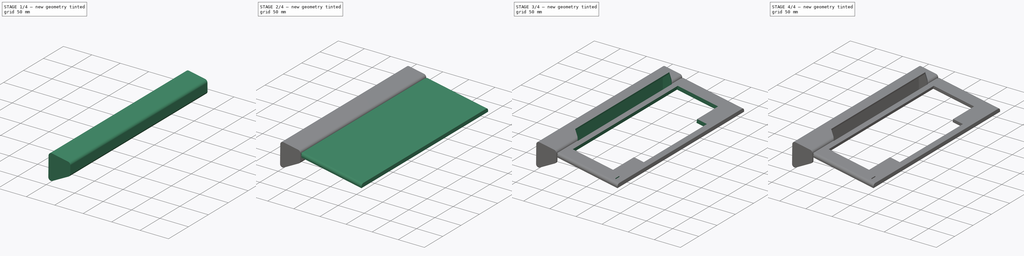
[diagram: build sequence overview — one tinted view per stage of 4, left to right]
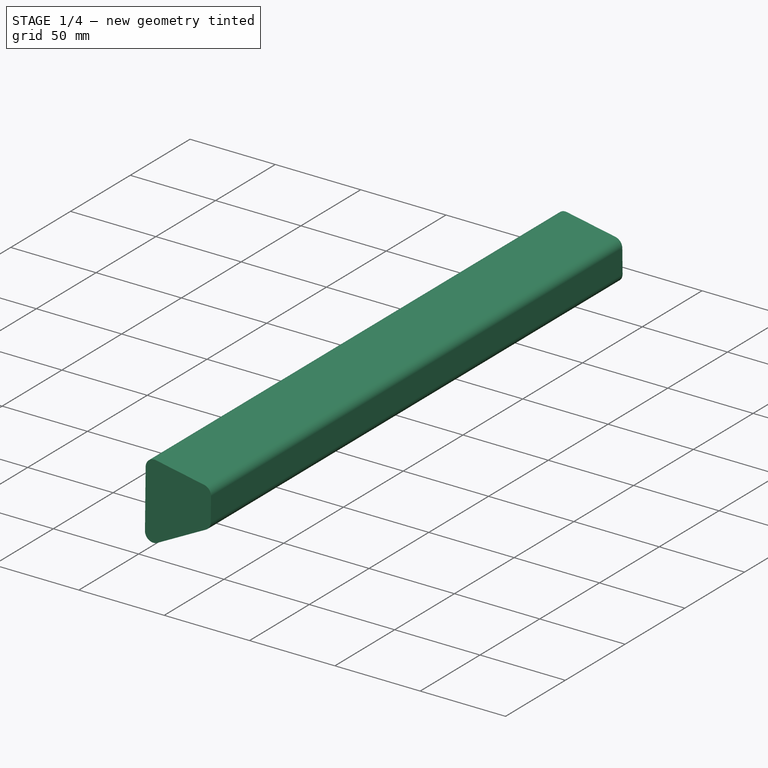
[diagram: stage 1 of 4 — iso view after this stage's code; geometry added in this stage tinted green]
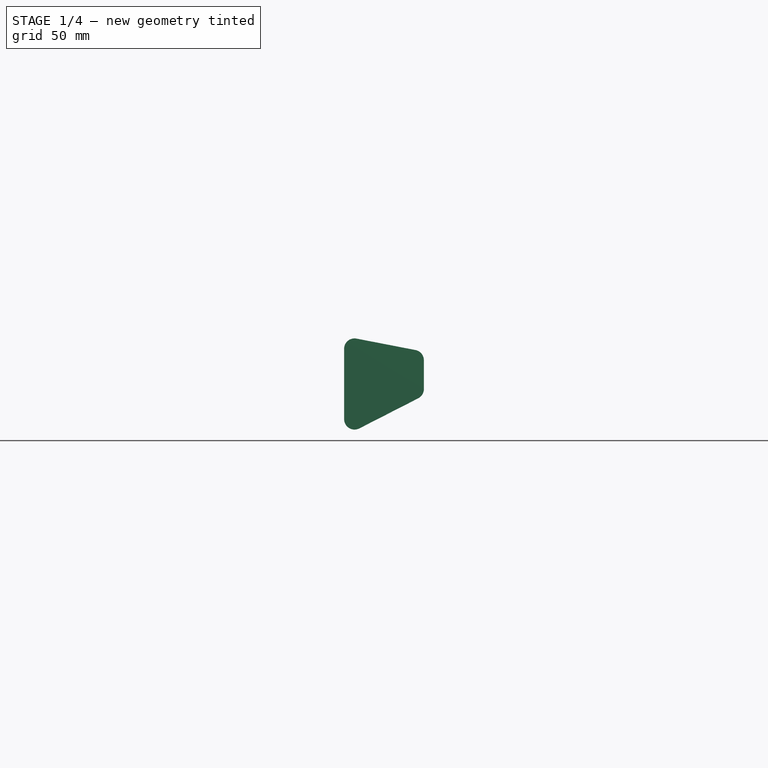
[diagram: stage 1 of 4 — front view after this stage's code; geometry added in this stage tinted green]
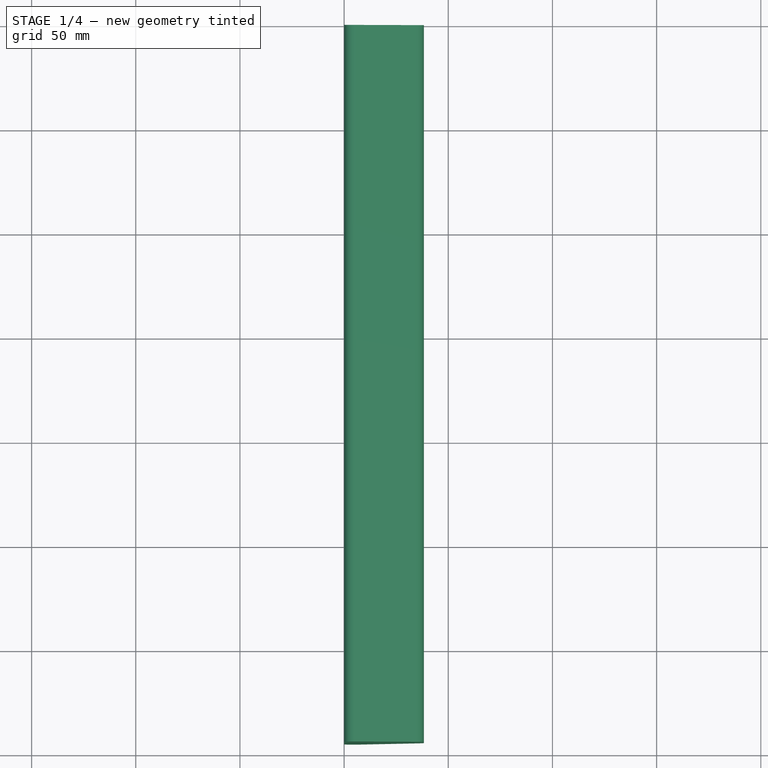
[diagram: stage 1 of 4 — top view after this stage's code; geometry added in this stage tinted green]
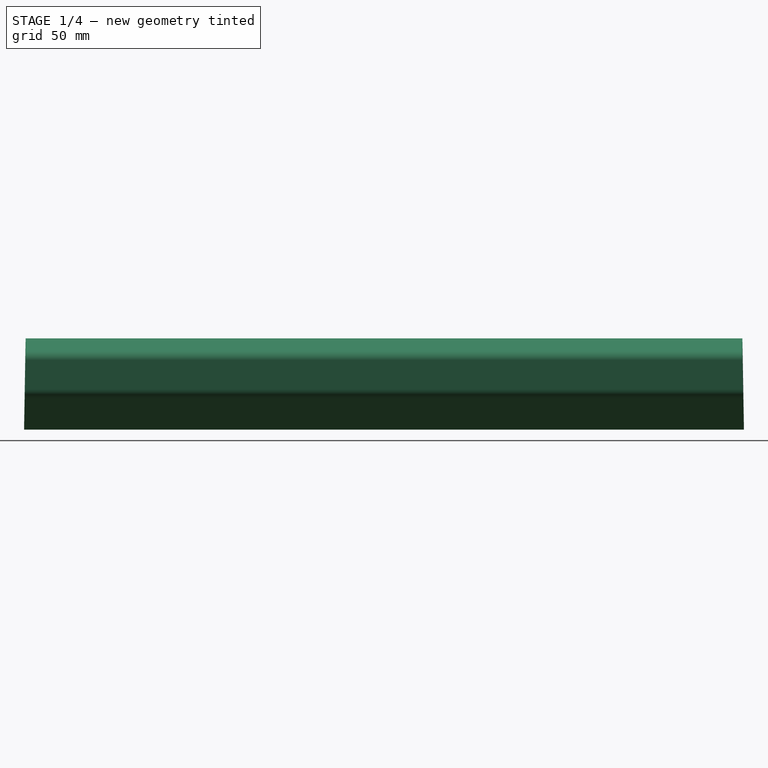
[diagram: stage 1 of 4 — right view after this stage's code; geometry added in this stage tinted green]
FCSTD DOCUMENT  (FreeCAD 0.21R33771 (Git))
Label: DecentXE-Enclosure
License: All rights reserved
LicenseURL: http://en.wikipedia.org/wiki/All_rights_reserved
objects: Sketcher::SketchObject×7, PartDesign::Pocket×5, PartDesign::Plane×4, PartDesign::Pad×3, PartDesign::Line×2, PartDesign::Point×2, PartDesign::Draft×1, Part::Offset2D×1, PartDesign::SubShapeBinder×1, PartDesign::Body×1, App::Part×1
note: 36 computed .brp shape members not serialized (recipe doc carries the construction recipe); baked Part::Feature solids carry a one-line shape summary decoded from their .brp

FEATURE [Sketcher::SketchObject] Sketch  label="ConsoleKeySectionSketch"
  FullyConstrained = true
  MapMode = 5
  Placement = pos=(0,0,0) rot=(1,0,0;1.5708rad)
  Support = -> [XZ_Plane001]
  sketch-geometry (12):
    g0: LineSegment StartX=5.95204 StartY=54.1257 StartZ=0 EndX=34.2385 EndY=48.6393 EndZ=0
    g1: ArcOfCircle CenterX=33.2865 CenterY=43.7308 CenterZ=0 NormalX=0 NormalY=0 NormalZ=1 AngleXU=0 Radius=5 StartAngle=5e-16 EndAngle=1.37922
    g2: LineSegment StartX=38.2865 StartY=43.7308 StartZ=0 EndX=38.2865 EndY=29.9135 EndZ=0
    g3: ArcOfCircle CenterX=33.2865 CenterY=29.9135 CenterZ=0 NormalX=0 NormalY=0 NormalZ=1 AngleXU=0 Radius=5 StartAngle=5.185 EndAngle=6.28319
    g4: LineSegment StartX=35.5625 StartY=25.4615 StartZ=0 EndX=7.27606 EndY=11 EndZ=0
    g5: ArcOfCircle CenterX=5 CenterY=15.4519 CenterZ=0 NormalX=0 NormalY=0 NormalZ=1 AngleXU=0 Radius=5 StartAngle=3.14159 EndAngle=5.185
    g6: LineSegment StartX=0 StartY=15.4519 StartZ=0 EndX=0 EndY=49.2171 EndZ=0
    g7: ArcOfCircle CenterX=5 CenterY=49.2171 CenterZ=0 NormalX=0 NormalY=0 NormalZ=1 AngleXU=0 Radius=5 StartAngle=1.37922 EndAngle=3.14159
    g8: GeomPoint X=0 Y=55.2801 Z=0
    g9: GeomPoint X=38.2865 Y=47.8542 Z=0
    g10: GeomPoint X=0 Y=7.2801 Z=0
    g11: GeomPoint X=38.2865 Y=26.8542 Z=0
  constraints (28):
    c: Tangent(g0,g1) = 1.5708
    c: Tangent(g2,g3) = 1.5708
    c: Tangent(g4,g5) = 1.5708
    c: Tangent(g6,g7) = 1.5708
    c: Tangent(g7,g0) = 1.5708
    c: Tangent(g5,g6) = 1.5708
    c: Tangent(g3,g4) = 1.5708
    c: Tangent(g1,g2) = 1.5708
    c: PointOnObject(g8,g0)
    c: PointOnObject(g8,g6)
    c: PointOnObject(g9,g0)
    c: PointOnObject(g9,g2)
    c: PointOnObject(g11,g2)
    c: PointOnObject(g11,g4)
    c: PointOnObject(g10,g4)
    c: PointOnObject(g10,g6)
    c: Distance(g8,g9) = 39
    c: Radius(g1) = 5
    c: Equal(g1,g7)
    c: Equal(g1,g3)
    c: Equal(g1,g5)
    c: Distance(g9,g11) = 21
    c: Distance(g8,g10) = 48
    c: Distance(g10,g11) = 43
    c: Vertical(g6)
    c: Vertical(g2)
    c: DistanceY(g-1,g4) = 11
    c: DistanceX(g-1,g5) = 0
FEATURE [PartDesign::Pad] Pad  label="ConsoleKeySection"
  Direction = (0,-1,-2e-16)
  Length = 344
  Length2 = 10
  Placement = pos=(0,0,0) rot=(1,0,0;1.5708rad)
  Profile = -> Sketch
  ReferenceAxis = -> Sketch [N_Axis]
  Type = 0
FEATURE [PartDesign::Draft] Draft  label="KeySectionDraft"
  Angle = 1
  Base = -> Pad [Face10,Face9]
  BaseFeature = -> Pad
  NeutralPlane = -> Pad [Face1]
  Placement = pos=(0,0,0) rot=(1,0,0;1.5708rad)
  SupportTransform = false
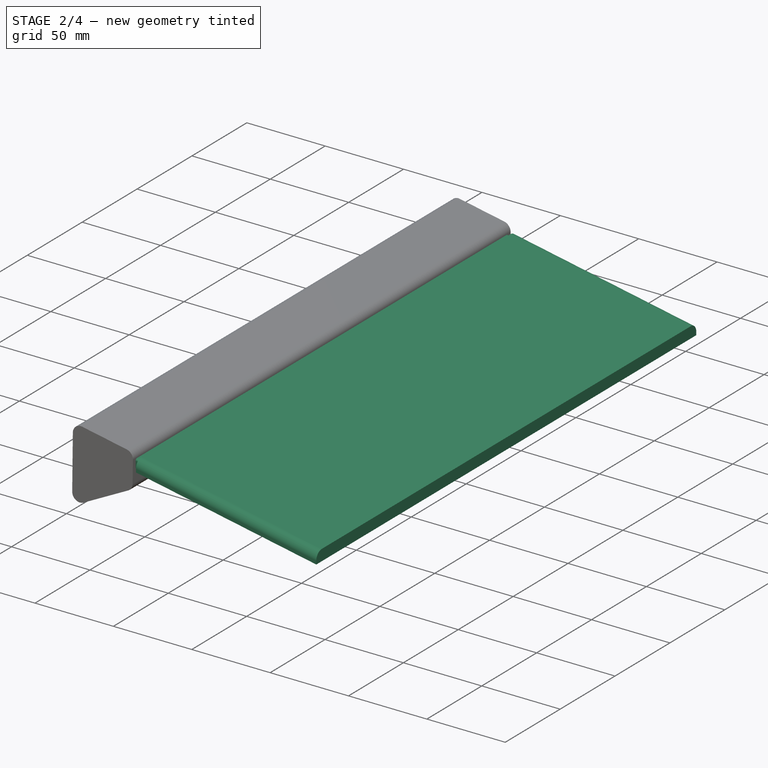
[diagram: stage 2 of 4 — iso view after this stage's code; geometry added in this stage tinted green]
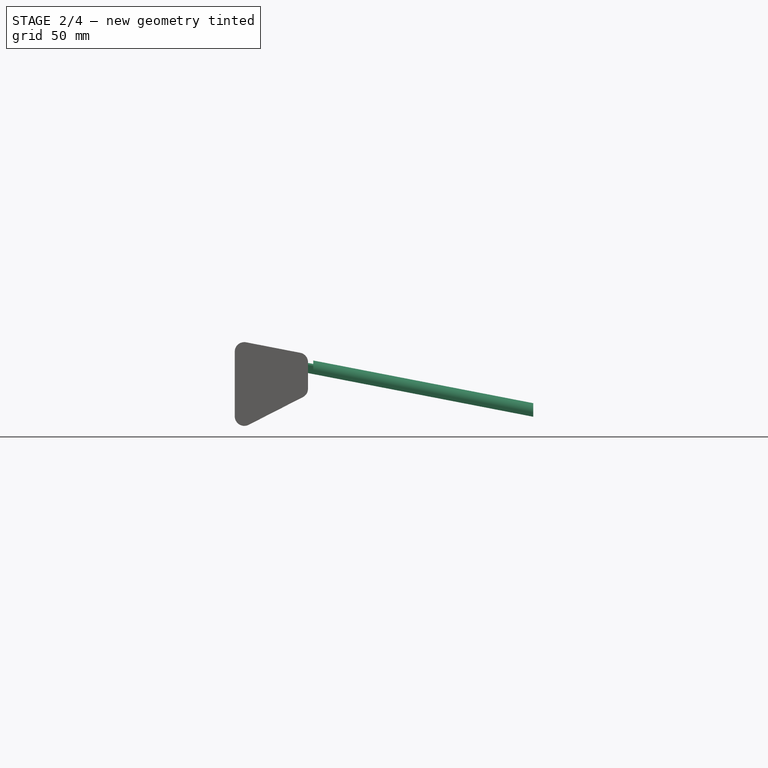
[diagram: stage 2 of 4 — front view after this stage's code; geometry added in this stage tinted green]
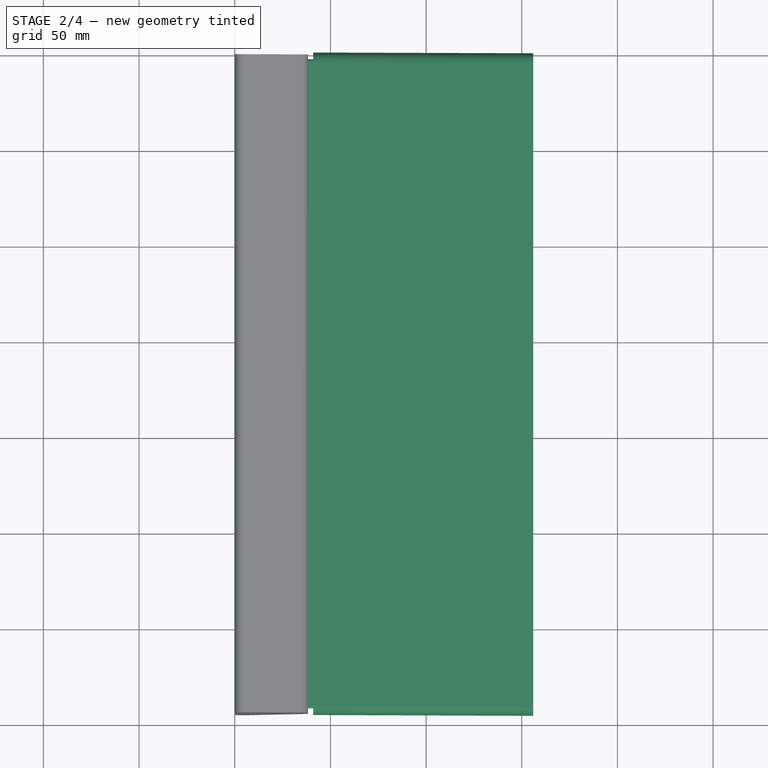
[diagram: stage 2 of 4 — top view after this stage's code; geometry added in this stage tinted green]
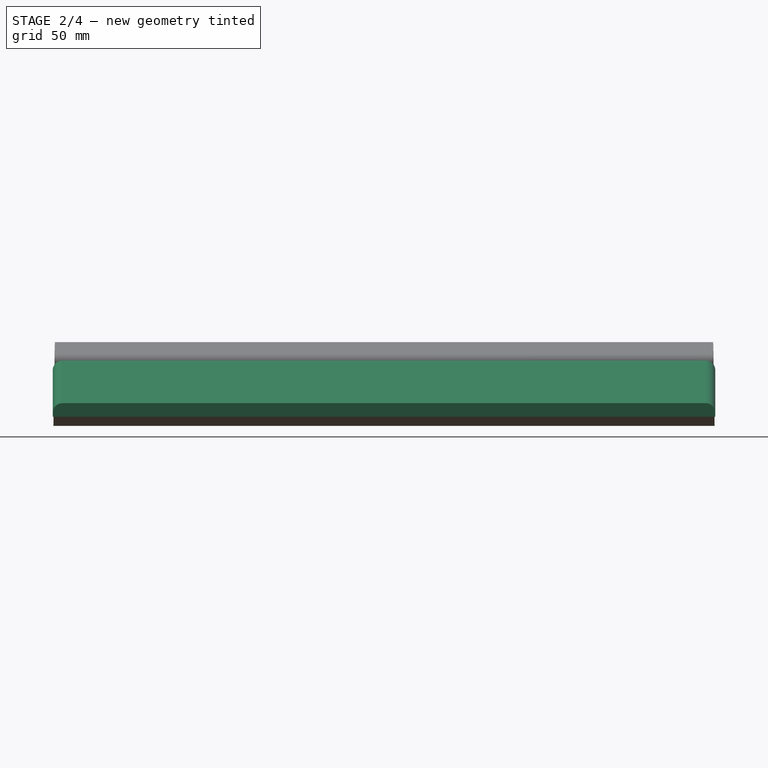
[diagram: stage 2 of 4 — right view after this stage's code; geometry added in this stage tinted green]
FEATURE [PartDesign::Plane] DatumPlane  label="KeyboardSectionBackPlane"
  AttachmentOffset = pos=(0,0,41) rot=(0,0,1;0rad)
  Length = 404.344
  MapMode = 2
  Placement = pos=(41,-9.1e-15,9.1e-15) rot=(0.57735,0.57735,0.57735;2.0944rad)
  ResizeMode = 0
  Support = -> [YZ_Plane001]
  Width = 113.456
FEATURE [PartDesign::Line] DatumLine  label="SlopeDatumLineLeft"
  AttacherType = Attacher::AttachEngineLine
  Length = 20
  MapMode = 29
  Placement = pos=(10.3332,-344,53.2759) rot=(0.610836,0.610836,0.503744;2.20832rad)
  ResizeMode = 0
  Support = -> [Draft]
FEATURE [PartDesign::Point] DatumPoint  label="KeyboardSectionBackPlaneAndSlopeIntersectionDatumPointLeft"
  AttacherType = Attacher::AttachEnginePoint
  MapMode = 40
  Placement = pos=(41,-344,47.3279) rot=(0,0,1;0rad)
  Support = -> [DatumLine,DatumPlane]
FEATURE [PartDesign::Line] DatumLine001  label="SlopeDatumLineRight"
  AttacherType = Attacher::AttachEngineLine
  Length = 20
  MapMode = 29
  Placement = pos=(10.3332,-1.18e-14,53.2759) rot=(0.610836,0.610836,0.503744;2.20832rad)
  ResizeMode = 0
  Support = -> [Sketch]
FEATURE [PartDesign::Point] DatumPoint001  label="KeyboardSectionBackPlaneAndSlopeIntersectionDatumPointRight"
  AttacherType = Attacher::AttachEnginePoint
  MapMode = 40
  Placement = pos=(41,1.8e-15,47.3279) rot=(0,0,1;0rad)
  Support = -> [DatumLine001,DatumPlane]
FEATURE [Sketcher::SketchObject] Sketch001  label="KeyboardSectionSketch"
  ExternalGeometry = -> [DatumPoint,DatumPoint001]
  FullyConstrained = true
  MapMode = 5
  Placement = pos=(41,-9.1e-15,9.1e-15) rot=(0.57735,0.57735,0.57735;2.0944rad)
  Support = -> [DatumPlane]
  sketch-geometry (6):
    g0: LineSegment StartX=-345.1 StartY=37.5279 StartZ=0 EndX=1.1 EndY=37.5279 EndZ=0
    g1: LineSegment StartX=1.1 StartY=37.5279 StartZ=0 EndX=1.1 EndY=39.6279 EndZ=0
    g2: LineSegment StartX=-345.1 StartY=37.5279 StartZ=0 EndX=-345.1 EndY=39.6279 EndZ=0
    g3: ArcOfCircle CenterX=-340.1 CenterY=39.6279 CenterZ=0 NormalX=0 NormalY=0 NormalZ=1 AngleXU=0 Radius=5 StartAngle=1.5708 EndAngle=3.14159
    g4: ArcOfCircle CenterX=-3.9 CenterY=39.6279 CenterZ=0 NormalX=0 NormalY=0 NormalZ=1 AngleXU=0 Radius=5 StartAngle=0 EndAngle=1.5708
    g5: LineSegment StartX=-340.1 StartY=44.6279 StartZ=0 EndX=-3.9 EndY=44.6279 EndZ=0
  constraints (20):
    c: Horizontal(g0)
    c: Coincident(g1,g0)
    c: Vertical(g1)
    c: Coincident(g2,g0)
    c: Vertical(g2)
    c: Coincident(g3,g2)
    c: Coincident(g4,g1)
    c: Coincident(g5,g3)
    c: Coincident(g5,g4)
    c: Horizontal(g5)
    c: Vertical(g3,g3)
    c: Vertical(g4,g4)
    c: Horizontal(g2,g3)
    c: Horizontal(g4,g1)
    c: Equal(g2,g1)
    c: Radius(g4) = 5
    c: DistanceX(g2,g-3) = 1.1
    c: DistanceX(g-4,g1) = 1.1
    c: DistanceY(g0,g3) = 7.1
    c: DistanceY(g3,g-3) = 2.7
FEATURE [Sketcher::SketchObject] Sketch002  label="ConsoleToKEyboardSectionJoinSketch"
  ExternalGeometry = -> [Sketch001]
  FullyConstrained = true
  MapMode = 5
  Placement = pos=(41,-9.1e-15,9.1e-15) rot=(0.57735,0.57735,0.57735;2.0944rad)
  Support = -> [DatumPlane]
  sketch-geometry (8):
    g0: LineSegment StartX=-341.6 StartY=37.5279 StartZ=0 EndX=-2.4 EndY=37.5279 EndZ=0
    g1: LineSegment StartX=-340.4 StartY=42.8279 StartZ=0 EndX=-3.6 EndY=42.8279 EndZ=0
    g2: LineSegment StartX=-345.1 StartY=37.5279 StartZ=0 EndX=-341.6 EndY=37.5279 EndZ=0
    g3: LineSegment StartX=-2.4 StartY=37.5279 StartZ=0 EndX=1.1 EndY=37.5279 EndZ=0
    g4: ArcOfCircle CenterX=-340.4 CenterY=41.6279 CenterZ=0 NormalX=0 NormalY=0 NormalZ=1 AngleXU=0 Radius=1.2 StartAngle=1.5708 EndAngle=3.14159
    g5: LineSegment StartX=-341.6 StartY=37.5279 StartZ=0 EndX=-341.6 EndY=41.6279 EndZ=0
    g6: ArcOfCircle CenterX=-3.6 CenterY=41.6279 CenterZ=0 NormalX=0 NormalY=0 NormalZ=1 AngleXU=0 Radius=1.2 StartAngle=-2.7e-15 EndAngle=1.5708
    g7: LineSegment StartX=-2.4 StartY=41.6279 StartZ=0 EndX=-2.4 EndY=37.5279 EndZ=0
  constraints (24):
    c: PointOnObject(g0,g-3)
    c: PointOnObject(g0,g-3)
    c: Horizontal(g1)
    c: DistanceX(g-3,g0) = 3.5
    c: DistanceY(g1,g-4) = 1.8
    c: Coincident(g2,g-3)
    c: Coincident(g2,g0)
    c: Coincident(g3,g0)
    c: Coincident(g3,g-3)
    c: Vertical(g4,g4)
    c: Coincident(g4,g1)
    c: Vertical(g4,g0)
    c: Horizontal(g4,g4)
    c: Radius(g4) = 1.2
    c: Coincident(g5,g0)
    c: Coincident(g5,g4)
    c: Equal(g4,g6)
    c: Horizontal(g6,g6)
    c: Vertical(g6,g6)
    c: Vertical(g0,g6)
    c: Coincident(g1,g6)
    c: Coincident(g7,g6)
    c: Coincident(g7,g0)
    c: Equal(g3,g2)
FEATURE [PartDesign::Pad] Pad001  label="ConsoleToKeyboardSectionJoin"
  BaseFeature = -> Draft
  Direction = (0.981705,-1e-16,-0.190408)
  Length = 10
  Length2 = 10
  Placement = pos=(0,0,0) rot=(1,0,0;1.5708rad)
  Profile = -> Sketch002
  ReferenceAxis = -> DatumLine
  Reversed = true
  Type = 3
  UpToFace = -> Draft [Face3]
FEATURE [PartDesign::Pad] Pad002  label="KeyboardSectionPad"
  BaseFeature = -> Pad001
  Direction = (0.981705,-1e-16,-0.190408)
  Length = 115
  Length2 = 10
  Placement = pos=(0,0,0) rot=(1,0,0;1.5708rad)
  Profile = -> Sketch001
  ReferenceAxis = -> DatumLine
  Type = 0
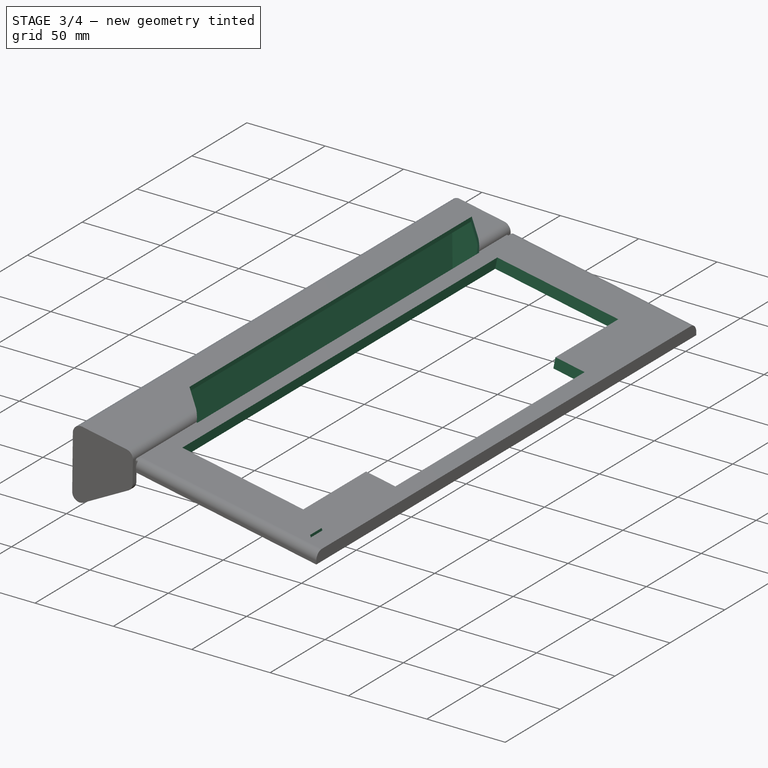
[diagram: stage 3 of 4 — iso view after this stage's code; geometry added in this stage tinted green]
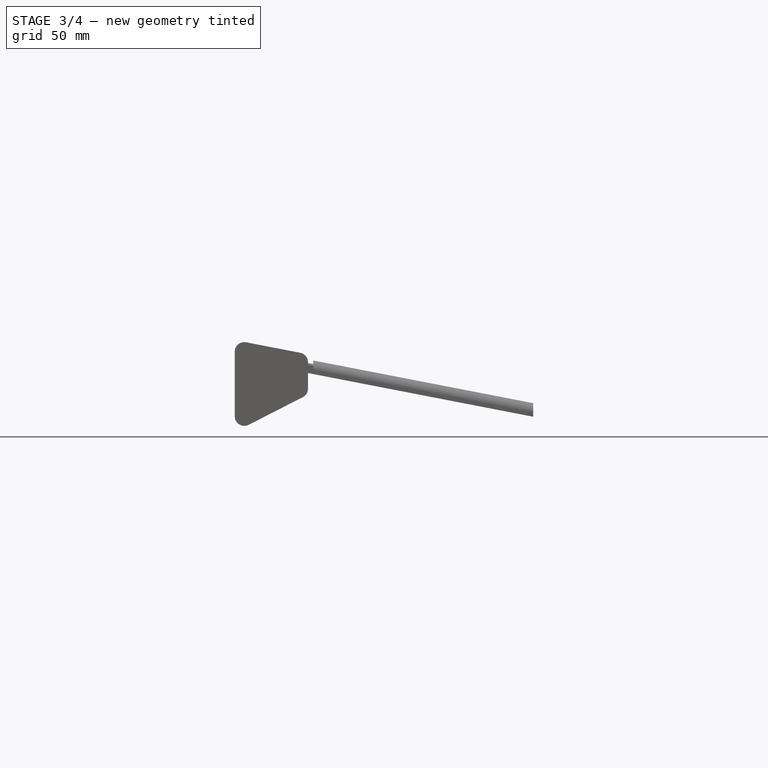
[diagram: stage 3 of 4 — front view after this stage's code; geometry added in this stage tinted green]
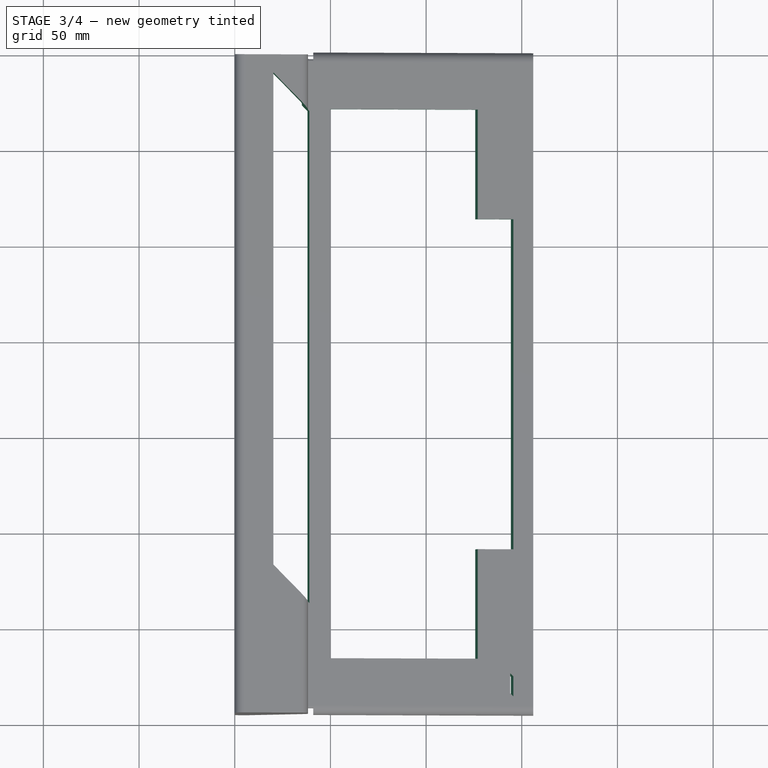
[diagram: stage 3 of 4 — top view after this stage's code; geometry added in this stage tinted green]
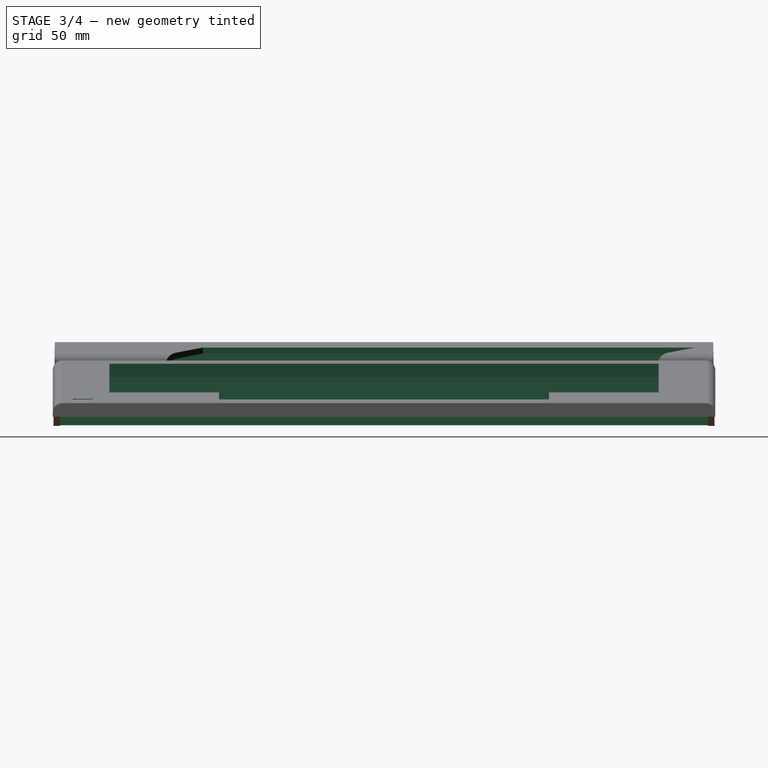
[diagram: stage 3 of 4 — right view after this stage's code; geometry added in this stage tinted green]
FEATURE [PartDesign::Plane] DatumPlane001  label="ConsoleSectionLeftInnerPlane"
  AttachmentOffset = pos=(0,0,-3.4) rot=(0,0,1;0rad)
  Length = 207.204
  MapMode = 5
  Placement = pos=(1.13482,-341.443,5.85087) rot=(0.999997,0.00169,0.001662;1.55367rad)
  ResizeMode = 0
  Support = -> [Draft]
  Width = 110.512
FEATURE [PartDesign::Plane] DatumPlane002  label="ConsoleSectionRightInnerPlane"
  AttachmentOffset = pos=(0,0,-3.4) rot=(0,0,1;0rad)
  Length = 207.204
  MapMode = 5
  Placement = pos=(-0.00815113,-2.45251,-0.0420255) rot=(-0.999997,0.00169,-0.001662;1.55367rad)
  ResizeMode = 0
  Support = -> [Draft]
  Width = 110.512
FEATURE [Sketcher::SketchObject] Sketch003  label="ConsoleSectionCavitySketch"
  AttachmentOffset = pos=(0,0,10) rot=(0,0,1;0rad)
  ExternalGeometry = -> [Sketch,Pad001]
  FullyConstrained = true
  MapMode = 5
  Placement = pos=(0,-10,-2.2e-15) rot=(1,0,0;1.5708rad)
  Support = -> [XZ_Plane001]
  sketch-geometry (18):
    g0: ArcOfCircle CenterX=5 CenterY=49.2171 CenterZ=0 NormalX=0 NormalY=0 NormalZ=1 AngleXU=0 Radius=1.8 StartAngle=1.37922 EndAngle=3.14159
    g1: LineSegment StartX=0 StartY=49.2171 StartZ=0 EndX=5 EndY=49.2171 EndZ=0
    g2: LineSegment StartX=5 StartY=49.2171 StartZ=0 EndX=5.95204 EndY=54.1257 EndZ=0
    g3: LineSegment StartX=5.95204 StartY=54.1257 StartZ=0 EndX=34.2385 EndY=48.6393 EndZ=0
    g4: LineSegment StartX=33.2865 StartY=43.7308 StartZ=0 EndX=34.2385 EndY=48.6393 EndZ=0
    g5: LineSegment StartX=33.2865 StartY=43.7308 StartZ=0 EndX=38.2865 EndY=43.7308 EndZ=0
    g6: ArcOfCircle CenterX=33.2865 CenterY=43.7308 CenterZ=0 NormalX=0 NormalY=0 NormalZ=1 AngleXU=0 Radius=1.8 StartAngle=-8.9e-15 EndAngle=1.37922
    g7: LineSegment StartX=5.34274 StartY=50.9842 StartZ=0 EndX=33.6292 EndY=45.4978 EndZ=0
    g8: LineSegment StartX=0 StartY=15.4519 StartZ=0 EndX=5 EndY=15.4519 EndZ=0
    g9: LineSegment StartX=5 StartY=15.4519 StartZ=0 EndX=7.27606 EndY=11 EndZ=0
    g10: LineSegment StartX=33.2865 StartY=29.9135 StartZ=0 EndX=38.2865 EndY=29.9135 EndZ=0
    g11: LineSegment StartX=33.2865 StartY=29.9135 StartZ=0 EndX=35.5625 EndY=25.4615 EndZ=0
    g12: LineSegment StartX=3.2 StartY=49.2171 StartZ=0 EndX=3.2 EndY=8.91611 EndZ=0
    g13: LineSegment StartX=7.27606 StartY=11 StartZ=0 EndX=35.5625 EndY=25.4615 EndZ=0
    g14: LineSegment StartX=3.2 StartY=8.91611 StartZ=0 EndX=41 EndY=8.91611 EndZ=0
    g15: LineSegment StartX=41 StartY=37.5279 StartZ=0 EndX=41 EndY=8.91611 EndZ=0
    g16: LineSegment StartX=41 StartY=37.5279 StartZ=0 EndX=35.0865 EndY=38.6748 EndZ=0
    g17: LineSegment StartX=35.0865 StartY=38.6748 StartZ=0 EndX=35.0865 EndY=43.7308 EndZ=0
  constraints (43):
    c: Coincident(g0,g-3)
    c: Coincident(g1,g-3)
    c: Coincident(g1,g0)
    c: Coincident(g2,g0)
    c: Coincident(g2,g-3)
    c: Coincident(g3,g2)
    c: Coincident(g3,g-4)
    c: Coincident(g4,g-4)
    c: Coincident(g4,g3)
    c: Coincident(g5,g4)
    c: Coincident(g5,g-4)
    c: PointOnObject(g0,g2)
    c: PointOnObject(g0,g1)
    c: DistanceX(g1,g0) = 3.2
    c: Coincident(g6,g4)
    c: PointOnObject(g6,g4)
    c: PointOnObject(g6,g5)
    c: DistanceX(g6,g5) = 3.2
    c: Coincident(g7,g0)
    c: Coincident(g7,g6)
    c: Coincident(g8,g-6)
    c: Coincident(g8,g-6)
    c: Coincident(g9,g8)
    c: Coincident(g9,g-6)
    c: Coincident(g10,g-5)
    c: Coincident(g10,g-5)
    c: Coincident(g11,g10)
    c: Coincident(g11,g-5)
    c: DistanceX(g8,g12) = 3.2
    c: Coincident(g12,g0)
    c: Coincident(g13,g9)
    c: Coincident(g13,g11)
    c: PointOnObject(g12,g13)
    c: Coincident(g14,g12)
    c: Horizontal(g14)
    c: Coincident(g15,g14)
    c: Vertical(g15)
    c: Coincident(g15,g-7)
    c: Coincident(g16,g15)
    c: Coincident(g17,g16)
    c: Coincident(g17,g6)
    c: Vertical(g17)
    c: PointOnObject(g16,g-7)
FEATURE [PartDesign::Pocket] Pocket  label="ConsoleKeyCavityPocketRight"
  BaseFeature = -> Pad002
  Direction = (0,1,2e-16)
  Length = 0
  Length2 = 5
  Placement = pos=(0,0,0) rot=(1,0,0;1.5708rad)
  Profile = -> Sketch003
  ReferenceAxis = -> Sketch003 [N_Axis]
  Refine = true
  Reversed = true
  Type = 3
  UpToFace = -> DatumPlane001 [Plane]
FEATURE [PartDesign::Pocket] Pocket001  label="ConsoleKeyCavityPocketLeft"
  BaseFeature = -> Pocket
  Direction = (0,1,2e-16)
  Length = 0
  Length2 = 5
  Placement = pos=(0,0,0) rot=(1,0,0;1.5708rad)
  Profile = -> Sketch003
  ReferenceAxis = -> Sketch003 [N_Axis]
  Refine = true
  Type = 3
  UpToFace = -> DatumPlane002 [Plane]
FEATURE [PartDesign::Plane] DatumPlane003  label="KeyboardSlopeDatumPlane"
  Length = 423.521
  MapMode = 13
  Placement = pos=(10.6605,-114.667,53.2124) rot=(0.095208,0.095208,0.990894;1.57994rad)
  ResizeMode = 0
  Support = -> [DatumLine001,DatumLine]
  Width = 246.192
FEATURE [Sketcher::SketchObject] Sketch004  label="KeyboardCutoutSketch"
  ExternalGeometry = -> [DatumPoint001,DatumPoint]
  FullyConstrained = true
  MapMode = 5
  Placement = pos=(10.6605,-114.667,53.2124) rot=(0.095208,0.095208,0.990894;1.57994rad)
  Support = -> [DatumPlane003]
  sketch-geometry (17):
    g0: LineSegment StartX=-200.833 StartY=-40.4049 StartZ=0 EndX=86.1667 EndY=-40.4049 EndZ=0
    g1: LineSegment StartX=86.1667 StartY=-40.4049 StartZ=0 EndX=86.1667 EndY=-119.005 EndZ=0
    g2: LineSegment StartX=86.1667 StartY=-119.005 StartZ=0 EndX=28.9167 EndY=-119.005 EndZ=0
    g3: LineSegment StartX=28.9167 StartY=-119.005 StartZ=0 EndX=28.9167 EndY=-138.005 EndZ=0
    g4: LineSegment StartX=28.9167 StartY=-138.005 StartZ=0 EndX=-143.583 EndY=-138.005 EndZ=0
    g5: LineSegment StartX=-143.583 StartY=-138.005 StartZ=0 EndX=-143.583 EndY=-119.005 EndZ=0
    g6: LineSegment StartX=-143.583 StartY=-119.005 StartZ=0 EndX=-200.833 EndY=-119.005 EndZ=0
    g7: LineSegment StartX=-200.833 StartY=-119.005 StartZ=0 EndX=-200.833 EndY=-40.4049 EndZ=0
    g8: LineSegment StartX=-172.008 StartY=-29.7049 StartZ=0 EndX=-152.008 EndY=-9.70495 EndZ=0
    g9: LineSegment StartX=-152.008 StartY=-9.70495 StartZ=0 EndX=105.167 EndY=-9.70495 EndZ=0
    g10: LineSegment StartX=105.167 StartY=-9.70495 StartZ=0 EndX=85.1667 EndY=-29.7049 EndZ=0
    g11: LineSegment StartX=85.1667 StartY=-29.7049 StartZ=0 EndX=-172.008 EndY=-29.7049 EndZ=0
    g12: LineSegment StartX=-220.533 StartY=-138.005 StartZ=0 EndX=-218.833 EndY=-136.305 EndZ=0
    g13: LineSegment StartX=-218.833 StartY=-136.305 StartZ=0 EndX=-208.333 EndY=-136.305 EndZ=0
    g14: LineSegment StartX=-208.333 StartY=-136.305 StartZ=0 EndX=-210.033 EndY=-138.005 EndZ=0
    g15: LineSegment StartX=-210.033 StartY=-138.005 StartZ=0 EndX=-220.533 EndY=-138.005 EndZ=0
    g16: LineSegment StartX=-57.3333 StartY=-40.4049 StartZ=0 EndX=-57.3333 EndY=-138.005 EndZ=0
  constraints (49):
    c: Horizontal(g0)
    c: Coincident(g0,g1)
    c: Vertical(g1)
    c: Coincident(g1,g2)
    c: Horizontal(g2)
    c: Coincident(g2,g3)
    c: Vertical(g3)
    c: Coincident(g3,g4)
    c: Coincident(g4,g5)
    c: Vertical(g5)
    c: Coincident(g5,g6)
    c: Horizontal(g6)
    c: Coincident(g6,g7)
    c: Coincident(g7,g0)
    c: Vertical(g7)
    c: Coincident(g8,g9)
    c: Horizontal(g9)
    c: Coincident(g9,g10)
    c: Coincident(g10,g11)
    c: Coincident(g11,g8)
    c: Horizontal(g11)
    c: Horizontal(g5,g2)
    c: Angle(g11,g8) = 0.785398
    c: Angle(g9,g10) = 0.785398
    c: DistanceY(g-4,g10) = 1.2
    c: DistanceX(g9,g-3) = 9.5
    c: DistanceY(g8,g8) = 20
    c: DistanceX(g9,g9) = 257.175
    c: Coincident(g12,g13)
    c: Horizontal(g13)
    c: Coincident(g13,g14)
    c: Coincident(g14,g15)
    c: Coincident(g15,g12)
    c: Horizontal(g15)
    c: Angle(g15,g12) = 0.785398
    c: Angle(g13,g14) = 0.785398
    c: DistanceX(g15,g15) = 10.5
    c: DistanceY(g14,g13) = 1.7
    c: Symmetric(g-4,g-3,g16)
    c: PointOnObject(g16,g4)
    c: Symmetric(g0,g0,g16)
    c: Symmetric(g4,g3,g16)
    c: DistanceY(g0,g-3) = 9.5
    c: DistanceY(g3,g0) = 97.6
    c: DistanceY(g3,g3) = 19
    c: DistanceX(g0,g0) = 287
    c: DistanceX(g4,g4) = 172.5
    c: DistanceX(g13,g6) = 7.5
    c: Horizontal(g14,g4)
FEATURE [PartDesign::Pocket] Pocket002  label="KeyboardCutout"
  BaseFeature = -> Pocket001
  Direction = (-0.190408,2e-16,-0.981705)
  Length = 5
  Length2 = 5
  Placement = pos=(0,0,0) rot=(1,0,0;1.5708rad)
  Profile = -> Sketch004
  ReferenceAxis = -> Sketch004 [N_Axis]
  Refine = true
  Type = 1
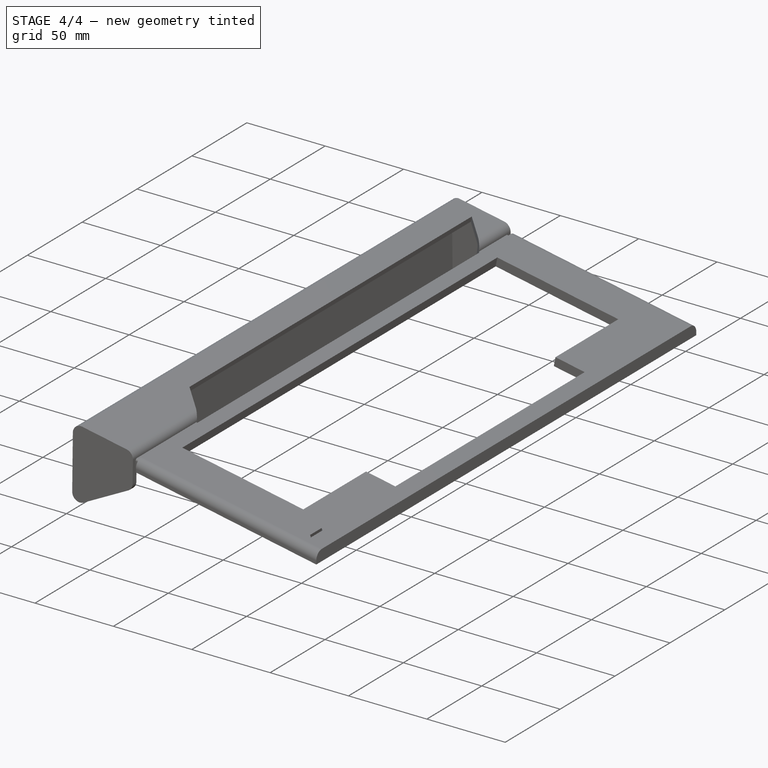
[diagram: stage 4 of 4 — iso view after this stage's code; geometry added in this stage tinted green]
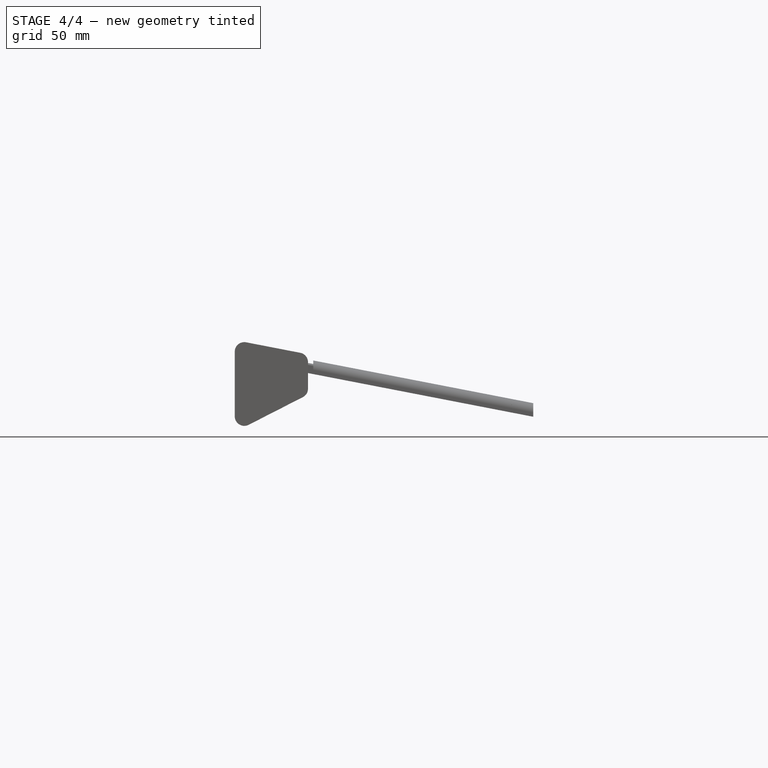
[diagram: stage 4 of 4 — front view after this stage's code; geometry added in this stage tinted green]
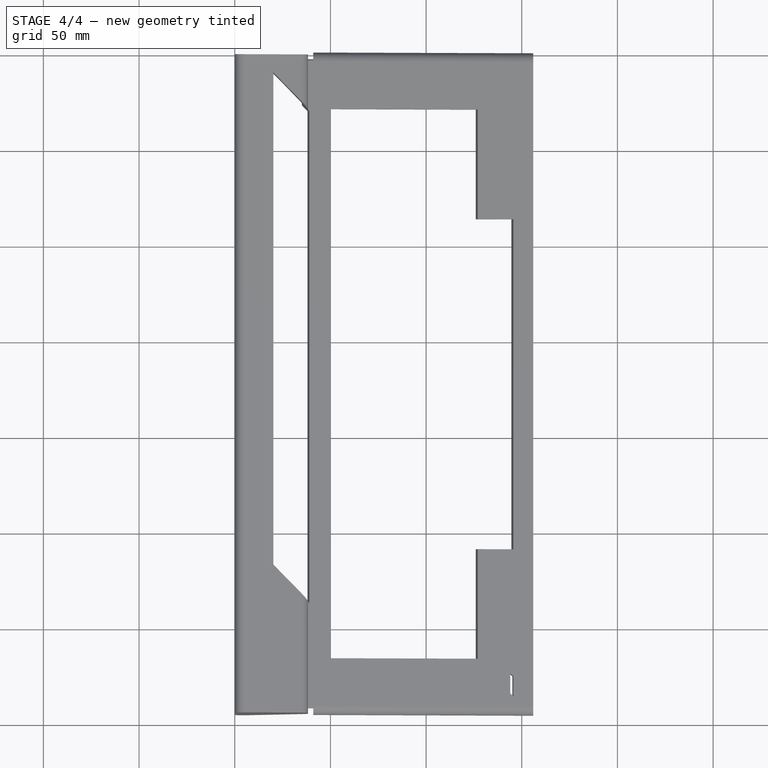
[diagram: stage 4 of 4 — top view after this stage's code; geometry added in this stage tinted green]
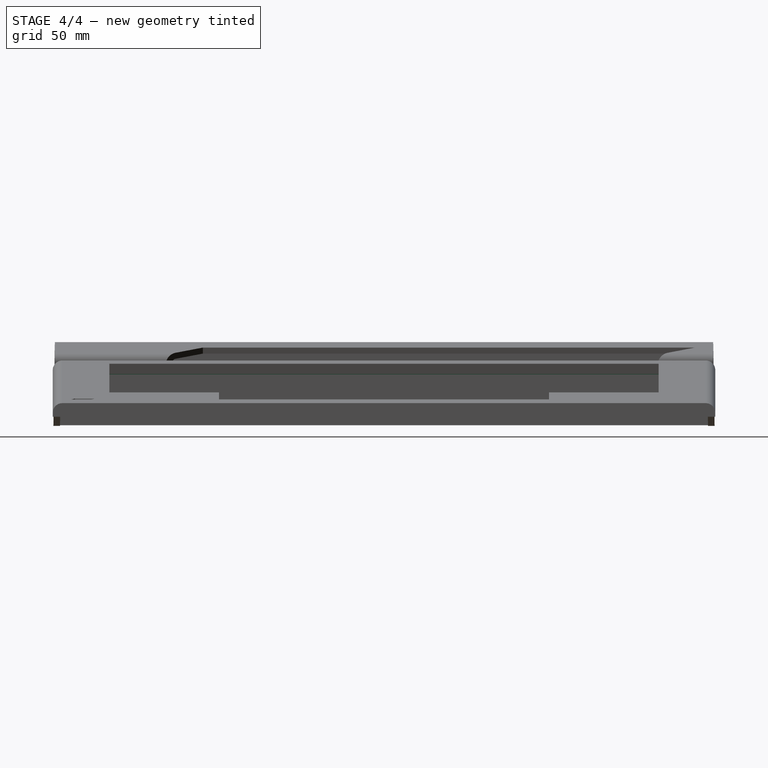
[diagram: stage 4 of 4 — right view after this stage's code; geometry added in this stage tinted green]
FEATURE [Part::Offset2D] Offset2D
  Fill = false
  Intersection = false
  Join = 0
  Mode = 1
  SelfIntersection = false
  Source = -> Sketch004
  Value = 2
FEATURE [PartDesign::SubShapeBinder] Binder  label="KeyboardCutoutOffsetBinder"
  BindCopyOnChange = 0
  BindMode = 0
  ClaimChildren = false
  Context = -> Part [Body.Binder.]
  Fuse = false
  MakeFace = true
  OffsetFill = false
  OffsetIntersection = false
  OffsetJoinType = 0
  OffsetOpenResult = false
  PartialLoad = false
  Relative = true
  Support = -> [Offset2D]
  _Version = 2
FEATURE [Sketcher::SketchObject] Sketch005  label="AroundKeyboardPocketSketch"
  ExternalGeometry = -> [DatumPoint,DatumPoint001,Binder,Pad002]
  FullyConstrained = true
  MapMode = 5
  Placement = pos=(8.50136,2.45e-14,43.8312) rot=(0.995416,0,-0.095643;3.14159rad)
  Support = -> [Pad002]
  expr: Constraints[22] = .Constraints.InnerKeyboardPocketWall
  expr: Constraints[23] = .Constraints.InnerKeyboardPocketWall
  expr: Constraints[24] = .Constraints.InnerKeyboardPocketWall
  expr: Constraints[68] = .Constraints.InnerKeyboardPocketWall
  sketch-geometry (26):
    g0: LineSegment StartX=119.338 StartY=26.5 StartZ=0 EndX=40.7383 EndY=26.5 EndZ=0
    g1: LineSegment StartX=40.7383 StartY=317.5 StartZ=0 EndX=119.338 EndY=317.5 EndZ=0
    g2: LineSegment StartX=38.7383 StartY=28.5 StartZ=0 EndX=38.7383 EndY=315.5 EndZ=0
    g3: LineSegment StartX=121.338 StartY=28.5 StartZ=0 EndX=121.338 EndY=83.75 EndZ=0
    g4: LineSegment StartX=121.338 StartY=83.75 StartZ=0 EndX=138.338 EndY=83.75 EndZ=0
    g5: LineSegment StartX=140.338 StartY=85.75 StartZ=0 EndX=140.338 EndY=258.25 EndZ=0
    g6: LineSegment StartX=138.338 StartY=260.25 StartZ=0 EndX=121.338 EndY=260.25 EndZ=0
    g7: LineSegment StartX=121.338 StartY=260.25 StartZ=0 EndX=121.338 EndY=315.5 EndZ=0
    g8: LineSegment StartX=147.247 StartY=3 StartZ=0 EndX=147.247 EndY=341 EndZ=0
    g9: ArcOfCircle CenterX=40.7383 CenterY=315.5 CenterZ=0 NormalX=0 NormalY=0 NormalZ=1 AngleXU=0 Radius=2 StartAngle=1.5708 EndAngle=3.14159
    g10: ArcOfCircle CenterX=119.338 CenterY=315.5 CenterZ=0 NormalX=0 NormalY=0 NormalZ=1 AngleXU=0 Radius=2 StartAngle=-8.9e-15 EndAngle=1.5708
    g11: ArcOfCircle CenterX=138.338 CenterY=258.25 CenterZ=0 NormalX=0 NormalY=0 NormalZ=1 AngleXU=0 Radius=2 StartAngle=1.33e-14 EndAngle=1.5708
    g12: ArcOfCircle CenterX=138.338 CenterY=85.75 CenterZ=0 NormalX=0 NormalY=0 NormalZ=1 AngleXU=0 Radius=2 StartAngle=4.71239 EndAngle=6.28319
    g13: ArcOfCircle CenterX=40.7383 CenterY=28.5 CenterZ=0 NormalX=0 NormalY=0 NormalZ=1 AngleXU=0 Radius=2 StartAngle=3.14159 EndAngle=4.71239
    g14: ArcOfCircle CenterX=119.338 CenterY=28.5 CenterZ=0 NormalX=0 NormalY=0 NormalZ=1 AngleXU=0 Radius=2 StartAngle=4.71239 EndAngle=6.28319
    g15: LineSegment StartX=34.2383 StartY=341 StartZ=0 EndX=34.2383 EndY=338 EndZ=0
    g16: LineSegment StartX=147.247 StartY=341 StartZ=0 EndX=37.2383 EndY=341 EndZ=0
    g17: LineSegment StartX=37.2383 StartY=341 StartZ=0 EndX=34.2383 EndY=341 EndZ=0
    g18: LineSegment StartX=34.2383 StartY=338 StartZ=0 EndX=34.2383 EndY=6 EndZ=0
    g19: LineSegment StartX=34.2383 StartY=6 StartZ=0 EndX=34.2383 EndY=3 EndZ=0
    g20: LineSegment StartX=34.2383 StartY=3 StartZ=0 EndX=37.2383 EndY=3 EndZ=0
    g21: LineSegment StartX=37.2383 StartY=3 StartZ=0 EndX=147.247 EndY=3 EndZ=0
    g22: LineSegment StartX=34.2383 StartY=338 StartZ=0 EndX=37.2383 EndY=338 EndZ=0
    g23: LineSegment StartX=37.2383 StartY=338 StartZ=0 EndX=37.2383 EndY=341 EndZ=0
    g24: LineSegment StartX=34.2383 StartY=6 StartZ=0 EndX=37.2383 EndY=6 EndZ=0
    g25: LineSegment StartX=37.2383 StartY=6 StartZ=0 EndX=37.2383 EndY=3 EndZ=0
  constraints (69):
    c: Coincident(g0,g-7)
    c: Coincident(g0,g-6)
    c: Coincident(g1,g-17)
    c: Coincident(g1,g-16)
    c: Coincident(g2,g-5)
    c: Coincident(g2,g-18)
    c: Coincident(g3,g-8)
    c: Coincident(g3,g-9)
    c: Coincident(g4,g3)
    c: Coincident(g4,g-10)
    c: Coincident(g5,g-11)
    c: Coincident(g5,g-12)
    c: Coincident(g6,g-13)
    c: Coincident(g6,g-14)
    c: Coincident(g7,g6)
    c: Coincident(g7,g-15)
    c: Coincident(g21,g8)
    c: Coincident(g8,g16)
    c: Coincident(g17,g15)
    c: Coincident(g19,g20)
    c: Vertical(g8)
    c: DistanceY(g-4,g20) = 3  'InnerKeyboardPocketWall'
    c: DistanceX(g-4,g20) = 3
    c: DistanceX(g21,g-19) = 3
    c: DistanceY(g17,g-3) = 3
    c: DistanceY(g-4,g20) = 3
    c: Coincident(g9,g2)
    c: Coincident(g9,g1)
    c: Coincident(g10,g1)
    c: Coincident(g10,g7)
    c: Horizontal(g9,g2)
    c: Horizontal(g10,g7)
    c: Coincident(g11,g6)
    c: Coincident(g11,g5)
    c: Horizontal(g11,g5)
    c: Coincident(g12,g5)
    c: Coincident(g12,g4)
    c: Horizontal(g12,g5)
    c: Coincident(g13,g0)
    c: Coincident(g13,g2)
    c: Coincident(g14,g3)
    c: Coincident(g14,g0)
    c: Horizontal(g2,g13)
    c: Horizontal(g14,g3)
    c: Coincident(g15,g18)
    c: Vertical(g15)
    c: Coincident(g16,g17)
    c: Horizontal(g16)
    c: Horizontal(g17)
    c: Coincident(g18,g19)
    c: Vertical(g18)
    c: Vertical(g19)
    c: Coincident(g20,g21)
    c: Horizontal(g20)
    c: Horizontal(g21)
    c: Coincident(g22,g18)
    c: Horizontal(g22)
    c: Coincident(g23,g16)
    c: Vertical(g23)
    c: Coincident(g24,g18)
    c: Horizontal(g24)
    c: Coincident(g25,g21)
    c: Vertical(g25)
    c: Vertical(g24,g22)
    c: Coincident(g22,g23)
    c: Coincident(g24,g25)
    c: Equal(g25,g24)
    c: Equal(g22,g23)
    c: DistanceY(g25,g25) = 3
FEATURE [PartDesign::Pocket] Pocket003  label="AroundKeyboardPocket"
  BaseFeature = -> Pocket002
  Direction = (0.190408,5e-16,0.981705)
  Length = 4
  Length2 = 5
  Placement = pos=(0,0,0) rot=(1,0,0;1.5708rad)
  Profile = -> Sketch005
  ReferenceAxis = -> Sketch005 [N_Axis]
  Type = 0
FEATURE [Sketcher::SketchObject] Sketch006  label="KeyboardLipSketch"
  ExternalGeometry = -> [Pad002,Sketch005]
  FullyConstrained = true
  MapMode = 5
  Placement = pos=(8.50136,2.45e-14,43.8312) rot=(0.995416,0,-0.095643;3.14159rad)
  Support = -> [Pad002]
  sketch-geometry (4):
    g0: LineSegment StartX=37.2383 StartY=343.6 StartZ=0 EndX=148.747 EndY=343.6 EndZ=0
    g1: LineSegment StartX=148.747 StartY=343.6 StartZ=0 EndX=148.747 EndY=0.4 EndZ=0
    g2: LineSegment StartX=148.747 StartY=0.4 StartZ=0 EndX=37.2383 EndY=0.4 EndZ=0
    g3: LineSegment StartX=37.2383 StartY=0.4 StartZ=0 EndX=37.2383 EndY=343.6 EndZ=0
  constraints (12):
    c: Coincident(g0,g1)
    c: Coincident(g1,g2)
    c: Coincident(g2,g3)
    c: Coincident(g3,g0)
    c: Horizontal(g0)
    c: Horizontal(g2)
    c: Vertical(g1)
    c: Vertical(g3)
    c: DistanceX(g1,g-4) = 1.5
    c: DistanceY(g0,g-3) = 1.5
    c: DistanceY(g-4,g1) = 1.5
    c: Vertical(g0,g-5)
FEATURE [PartDesign::Pocket] Pocket004  label="KeyboardLipPocket"
  BaseFeature = -> Pocket003
  Direction = (0.190408,5e-16,0.981705)
  Length = 1.5
  Length2 = 5
  Placement = pos=(0,0,0) rot=(1,0,0;1.5708rad)
  Profile = -> Sketch006
  ReferenceAxis = -> Sketch006 [N_Axis]
  Refine = true
  Type = 0
FEATURE [PartDesign::Body] Body  label="EnclosureTopBody"
  Group = -> [Sketch,Pad,Draft,DatumPlane,Sketch001,DatumLine,DatumPoint,DatumLine001,DatumPoint001,Sketch002,Pad001,Pad002,DatumPlane001,DatumPlane002,Sketch003,Pocket,Pocket001,DatumPlane003,Sketch004,Pocket002,Binder,Sketch005,Pocket003,Sketch006,Pocket004]
  Origin = -> Origin001
  Tip = -> Pocket004
FEATURE [App::Part] Part  label="EnclosureTop"
  Group = -> [Body]
  Origin = -> Origin
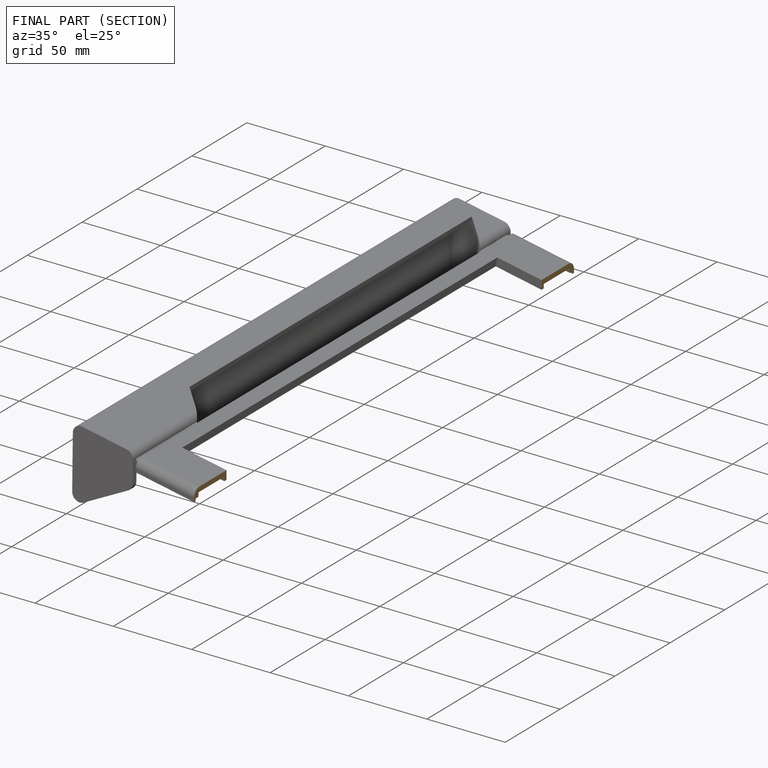
[diagram: finished part — half-section view (interior)]
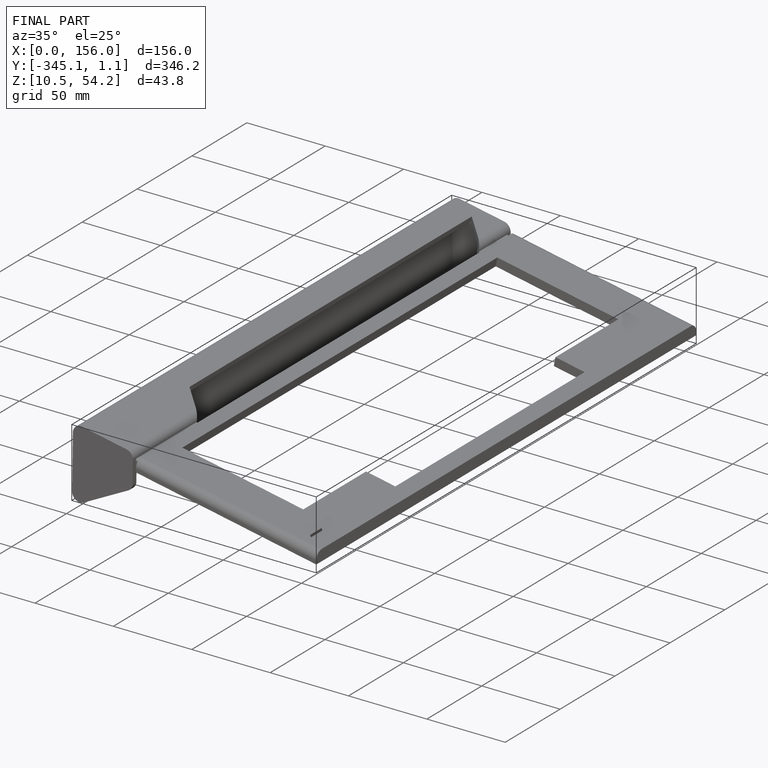
[diagram: finished part — iso view with bounding-box wireframe]
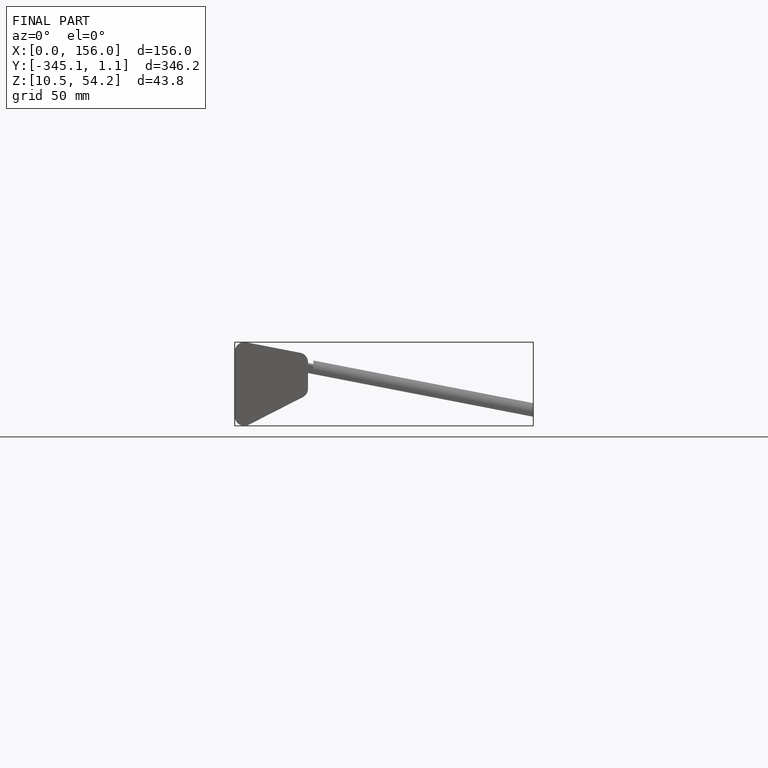
[diagram: finished part — front view with bounding-box wireframe]
